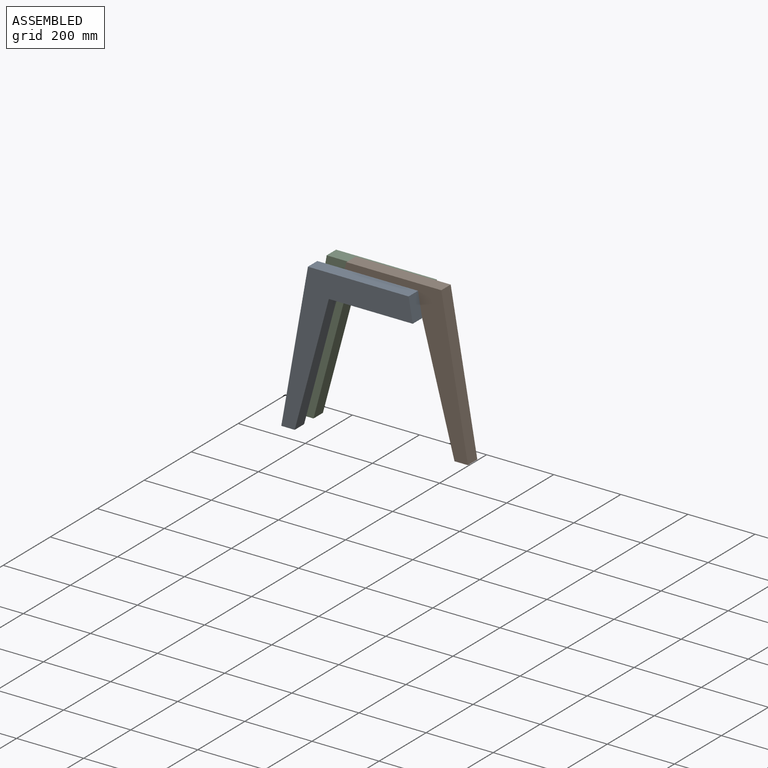
[diagram: assembled view]
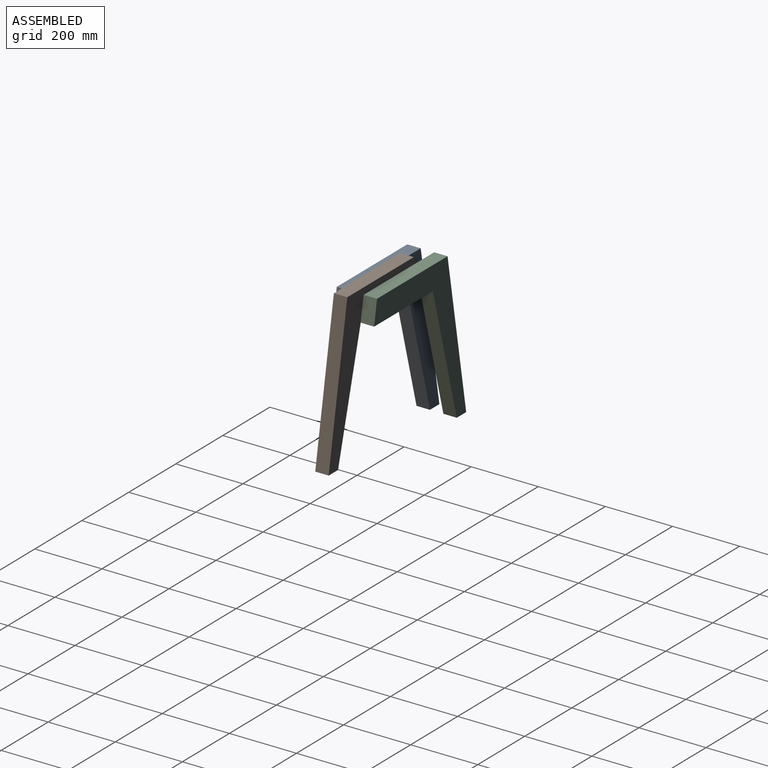
[diagram: assembled view, second angle]
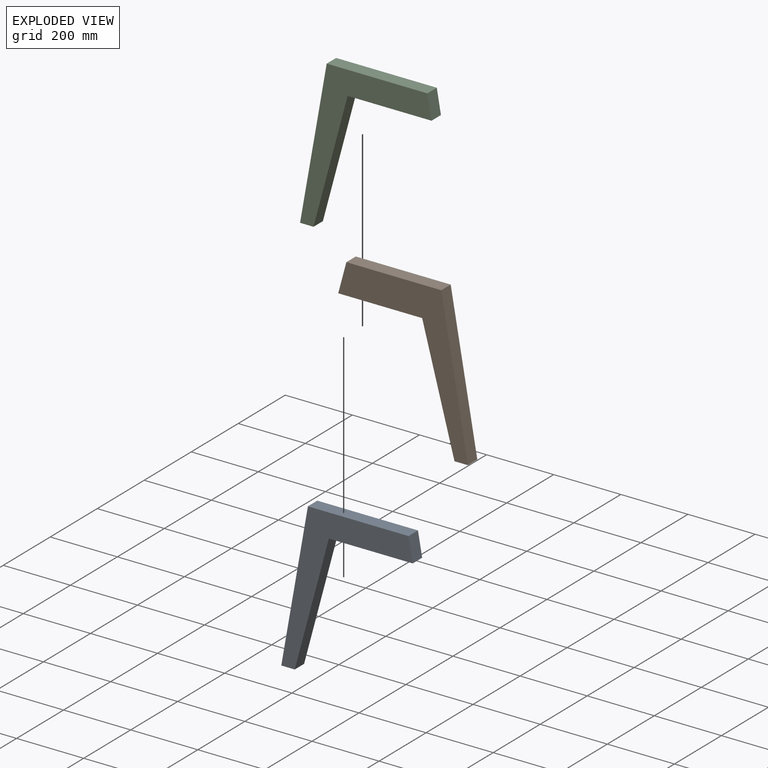
[diagram: exploded view]
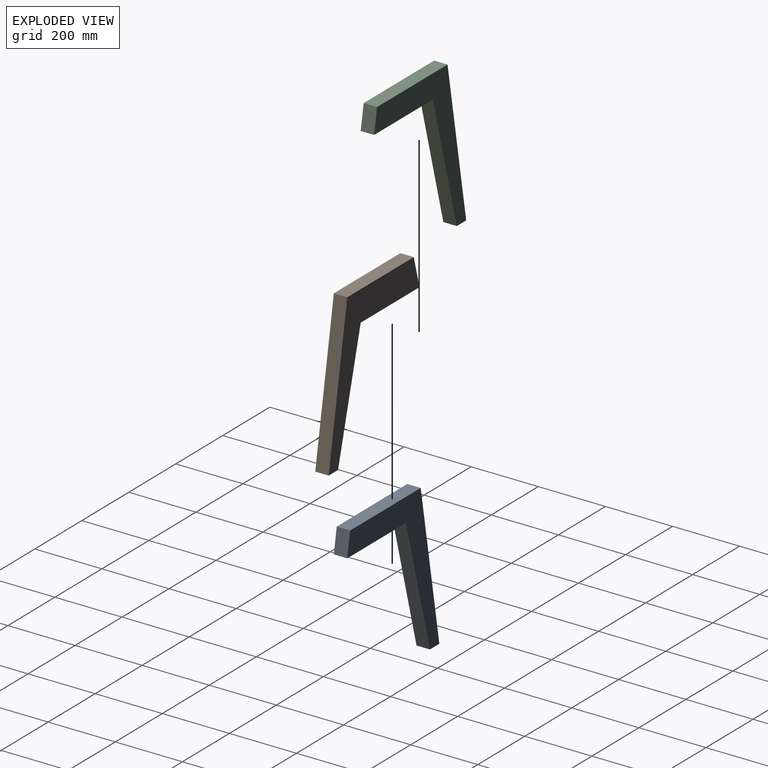
[diagram: exploded view, second angle]
ASSEMBLY  parts=3 mates=2
PART A: 8 faces, bbox 391.7x40x450 mm
  f0: plane 70.29x40mm, normal (0.98,0,0.17), area 2855.1mm2, adj f1,f5,f6,f7
  f1: plane 300x40mm, normal (0,0,1), area 12000mm2, adj f0,f2,f6,f7
  f2: plane 450x79.35mm, normal (-0.98,0,0.17), area 18277.7mm2, adj f1,f3,f6,f7
  f3: plane 40x40mm, normal (0,0,-1), area 1600mm2, adj f2,f4,f6,f7
  f4: plane 379.71x101.74mm, normal (0.97,0,-0.26), area 15724mm2, adj f3,f5,f6,f7
  f5: plane 250x40mm, normal (0,0,-1), area 10000mm2, adj f0,f4,f6,f7
  f6: plane 450x391.74mm, normal (0,-1,0), area 43752.6mm2, adj f0,f1,f2,f3,f4,f5
  f7: plane 450x391.74mm, normal (0,1,0), area 43752.6mm2, adj f0,f1,f2,f3,f4,f5
PART B: 8 faces, bbox 386.4x40x450 mm
  f0: plane 90.3x40mm, normal (-0.97,0,0.26), area 3739.5mm2, adj f1,f5,f6,f7
  f1: plane 250x40mm, normal (0,0,-1), area 10000mm2, adj f0,f2,f6,f7
  f2: plane 359.7x96.38mm, normal (-0.97,0,-0.26), area 14895.4mm2, adj f1,f3,f6,f7
  f3: plane 40x40mm, normal (0,0,-1), area 1600mm2, adj f2,f4,f6,f7
  f4: plane 450x79.35mm, normal (0.98,0,0.17), area 18277.7mm2, adj f3,f5,f6,f7
  f5: plane 282.84x40mm, normal (0,0,1), area 11313.5mm2, adj f0,f4,f6,f7
  f6: plane 450x386.38mm, normal (0,-1,0), area 47667.5mm2, adj f0,f1,f2,f3,f4,f5
  f7: plane 450x386.38mm, normal (0,1,0), area 47667.5mm2, adj f0,f1,f2,f3,f4,f5
PART C: same geometry as A
PLACE A t=(-269.48,-63.64,-107.52)mm
PLACE B t=(-191.47,-23.64,-87.51)mm
PLACE C t=(-269.48,16.36,-107.52)mm
MATE fastened C.f5 <-> B.f1  axis (0,0,1) through (-357.09,-23.64,272.19)mm
MATE fastened B.f1 <-> A.f5  axis (0,0,1) through (-107.09,-63.64,272.19)mm
